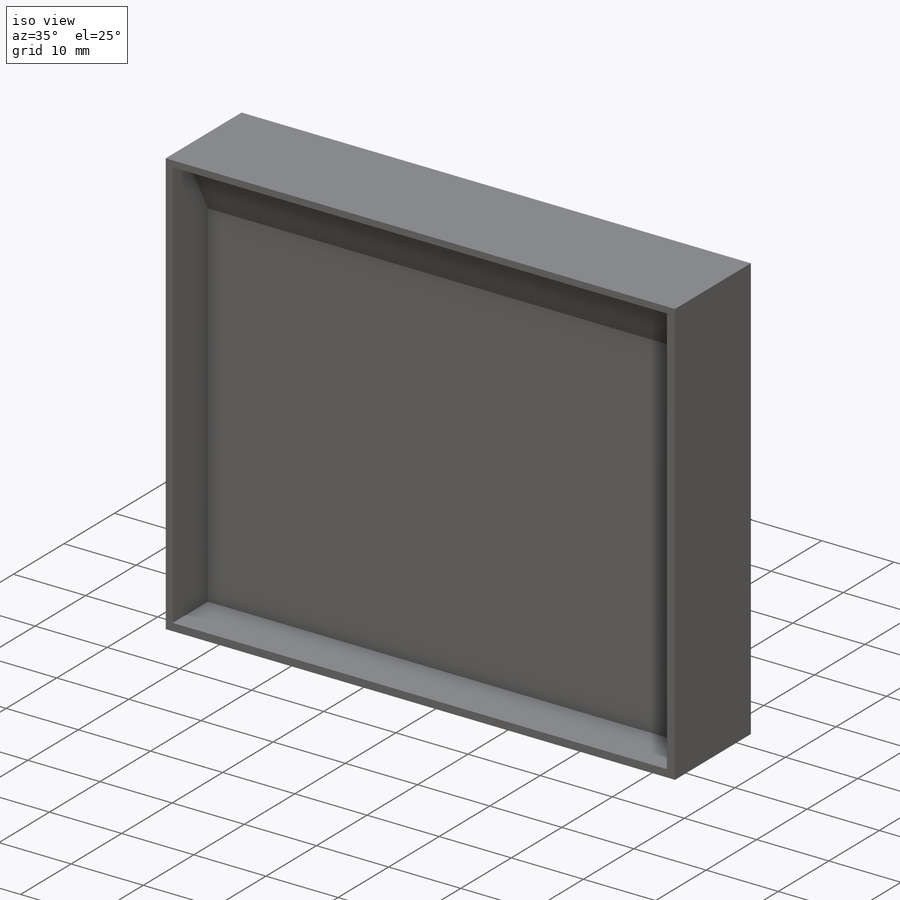
[diagram: iso view]
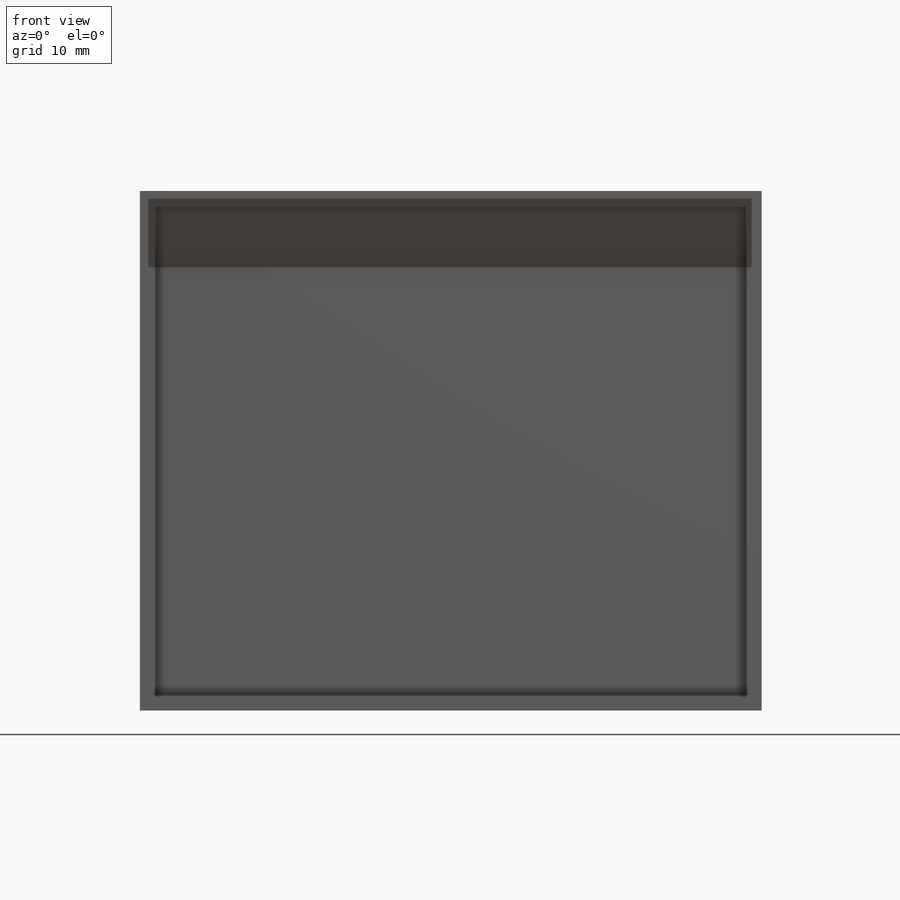
[diagram: front view]
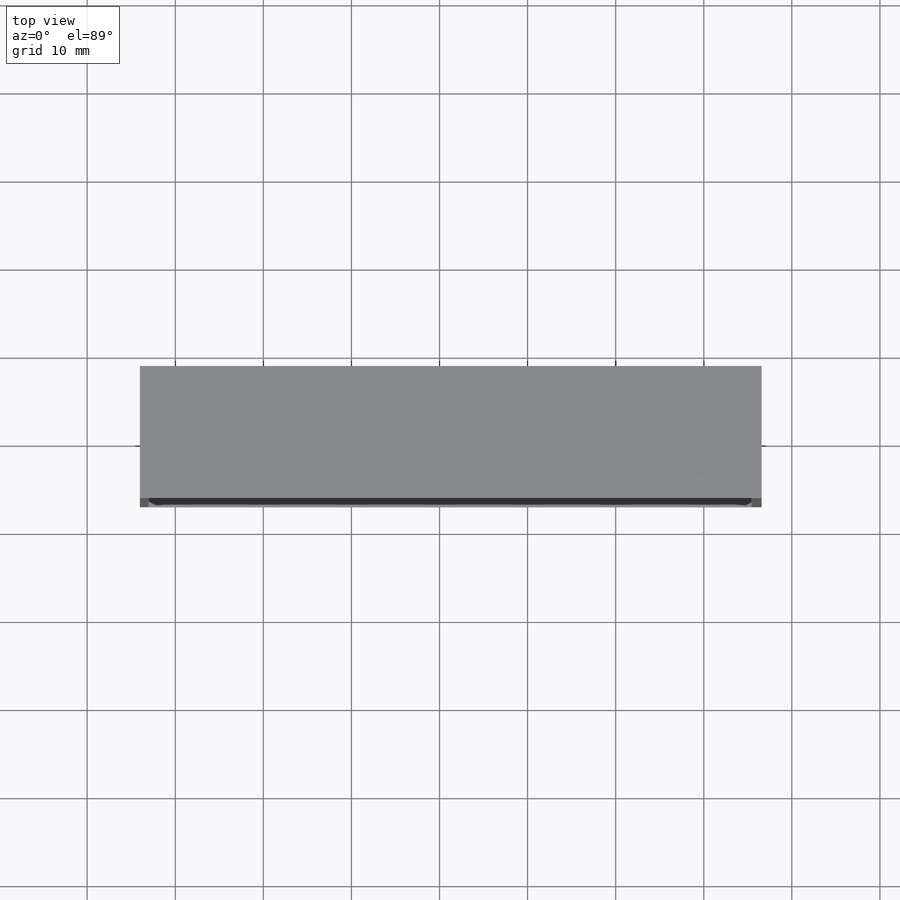
[diagram: top view]
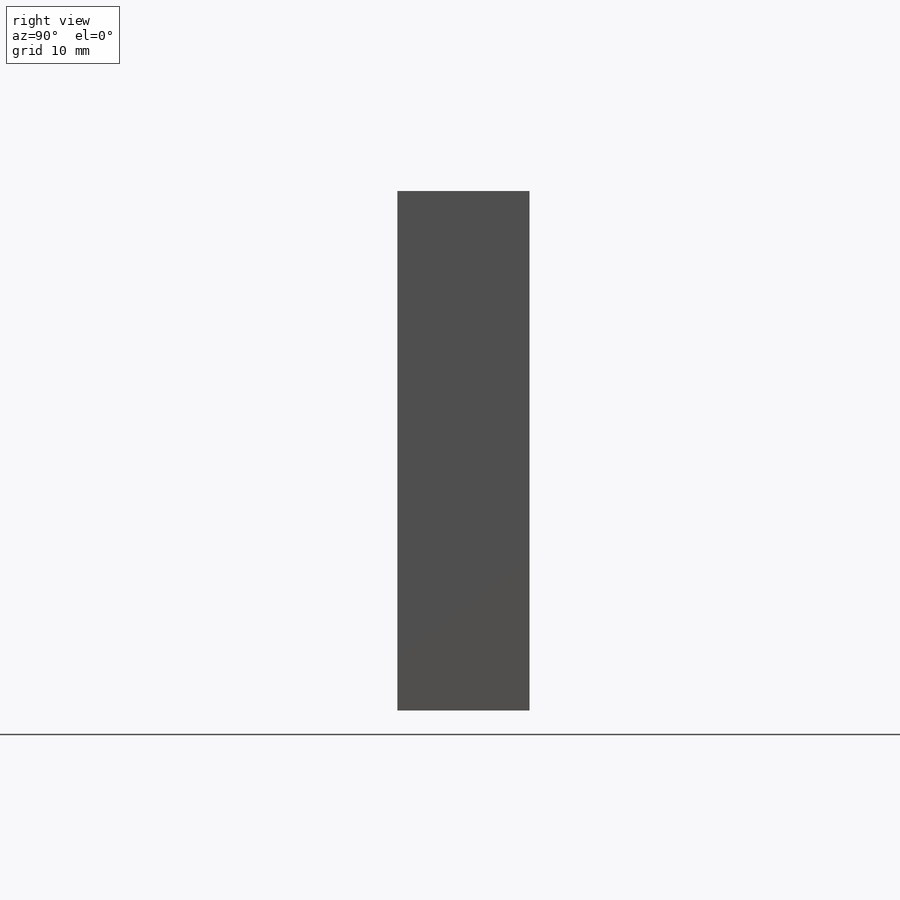
[diagram: right view]
SOLIDWORKS PART (.sldprt)
format: sldprt  version: not decoded by parser v0  size: 268,800 bytes
history: native  units: mm
features: sketch x6, extrude x2, material x1, cut_extrude x1 + 2 further entries (+16 scaffold rows collapsed)
feature tree (28):
  scaffold x16  (default folders/planes/origin — collapsed)
  material  "Material <not specified>"
  "Core Surface Bodies"
  "Parting Surface Bodies"
  sketch  "Sketch1"
  extrude  "Extrude1"  Depth=10mm
  sketch  "Sketch2"
  extrude  "Extrude2"  Depth=10mm
  sketch  "Sketch14"
  cut_extrude  "Extrude3"  Depth=2.3mm
  sketch  "Sketch20"  dims[D1=15.0mm D2=15.0mm D3=3.0deg]
  sketch  "Sketch24"
  sketch  "Sketch25"  dims[Core13=0.0deg]
decode coverage: 5 of 9 modeling features carry decoded parameters; 2 rows unclassified (native names shown)
note: suppression state not decoded; provenance and decode notes live in map.json
